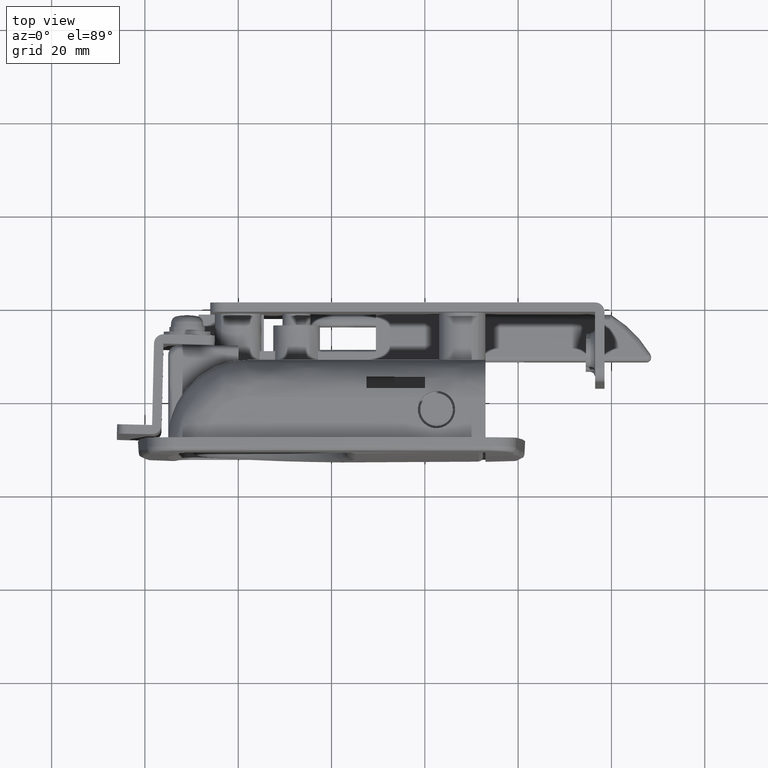
[diagram: clean part render]
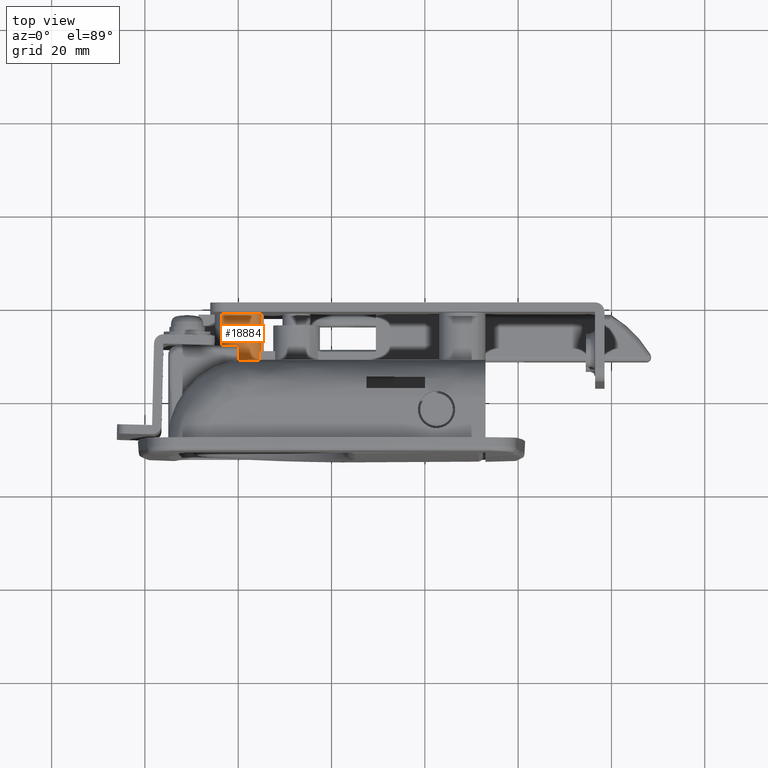
[diagram: same view with one face highlighted and labeled with its STEP entity id]
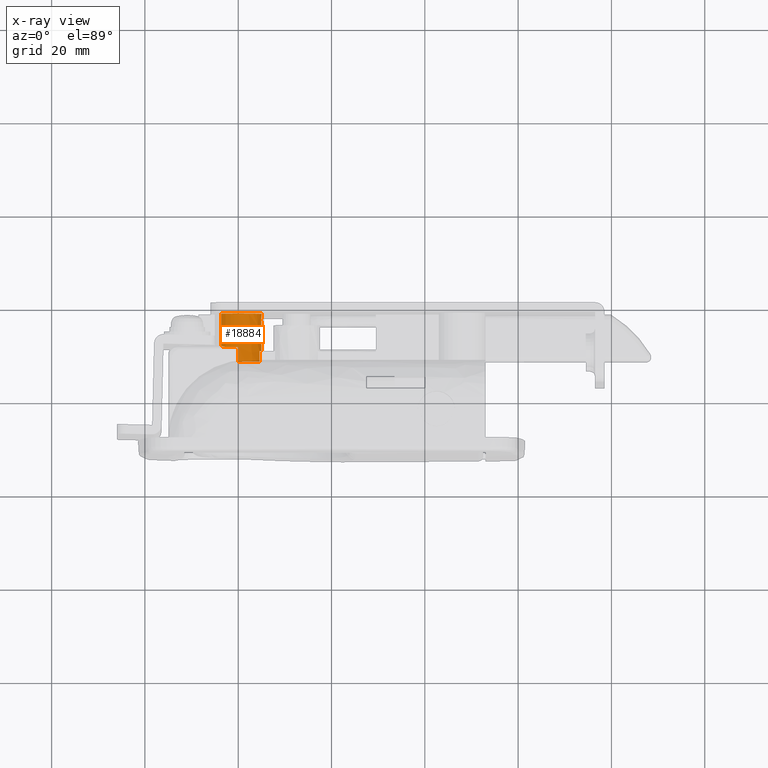
[diagram: x-ray of the same camera — body ghosted, the highlighted face saturated]
A machine part, top view. The second image highlights one B-rep face of the part: STEP entity #18884.
The next image is the same camera in x-ray: the body ghosted, the highlighted face saturated — about 1% of this face is hidden behind the body in this view.
In plain terms, the highlighted face is a freeform B-spline surface patch.
Its self-contained STEP definition (entity closure, byte-faithful):
#18643=CARTESIAN_POINT('',(23.415039969848849,-8.999999999997600,-13.847011557410120));
#18644=VERTEX_POINT('',#18643);
#18657=CARTESIAN_POINT('',(23.653989389418179,-9.000000000002327,-20.914040867268071));
#18658=VERTEX_POINT('',#18657);
#18668=CARTESIAN_POINT('',(23.653989379407150,-2.0,-20.914040877979780));
#18669=VERTEX_POINT('',#18668);
#18670=CARTESIAN_POINT('',(23.653989389418179,-9.000000000002327,-20.914040867268071));
#18671=CARTESIAN_POINT('',(23.653989379407150,-2.0,-20.914040877979780));
#18672=QUASI_UNIFORM_CURVE('',1,(#18670,#18671),.UNSPECIFIED.,.F.,.U.);
#18673=EDGE_CURVE('',#18658,#18669,#18672,.T.);
#18686=CARTESIAN_POINT('',(23.415039980559229,-2.0,-13.847011567419910));
#18687=VERTEX_POINT('',#18686);
#18697=CARTESIAN_POINT('',(23.415039969848849,-8.999999999997600,-13.847011557410120));
#18698=CARTESIAN_POINT('',(23.415039980559229,-2.0,-13.847011567419910));
#18699=QUASI_UNIFORM_CURVE('',1,(#18697,#18698),.UNSPECIFIED.,.F.,.U.);
#18700=EDGE_CURVE('',#18644,#18687,#18699,.T.);
#18705=CARTESIAN_POINT('',(23.653988845408861,-12.455000000000000,-20.914040494094710));
#18706=CARTESIAN_POINT('',(20.239948351314137,-12.455000000000002,-24.567029339503573));
#18707=CARTESIAN_POINT('',(16.586959505905291,-12.455000000000000,-21.152988845408860));
#18708=CARTESIAN_POINT('',(12.933970660496433,-12.455000000000002,-17.738948351314146));
#18709=CARTESIAN_POINT('',(16.348011154591148,-12.455000000000000,-14.085959505905290));
#18710=CARTESIAN_POINT('',(19.762051648685855,-12.455000000000002,-10.432970660496434));
#18711=CARTESIAN_POINT('',(23.415040494094718,-12.455000000000000,-13.847011154591140));
#18712=CARTESIAN_POINT('',(23.653988845408861,-1.738624999999999,-20.914040494094710));
#18713=CARTESIAN_POINT('',(20.239948351314137,-1.738625000000000,-24.567029339503573));
#18714=CARTESIAN_POINT('',(16.586959505905291,-1.738624999999999,-21.152988845408860));
#18715=CARTESIAN_POINT('',(12.933970660496433,-1.738625000000000,-17.738948351314146));
#18716=CARTESIAN_POINT('',(16.348011154591148,-1.738624999999999,-14.085959505905290));
#18717=CARTESIAN_POINT('',(19.762051648685855,-1.738625000000000,-10.432970660496434));
#18718=CARTESIAN_POINT('',(23.415040494094718,-1.738624999999999,-13.847011154591140));
#18726=(BOUNDED_SURFACE()B_SPLINE_SURFACE(2,1,((#18705,#18712),(#18706,#18713),(#18707,#18714),(#18708,#18715),(#18709,#18716),(#18710,#18717),(#18711,#18718)),.UNSPECIFIED.,.F.,.F.,.U.)B_SPLINE_SURFACE_WITH_KNOTS((3,2,2,3),(2,2),(0.0,8.284271247461907,16.568542494923818,24.852813742385720),(0.0,10.716374999999999),.UNSPECIFIED.)GEOMETRIC_REPRESENTATION_ITEM()RATIONAL_B_SPLINE_SURFACE(((1.0,1.0),(0.707106781186548,0.707106781186548),(1.0,1.0),(0.707106781186548,0.707106781186548),(1.0,1.0),(0.707106781186548,0.707106781186548),(1.0,1.0)))REPRESENTATION_ITEM('')SURFACE());
#18727=CARTESIAN_POINT('',(20.001000000000001,-9.0,-12.500000000000000));
#18728=VERTEX_POINT('',#18727);
#18729=CARTESIAN_POINT('',(20.001000000000001,-9.0,-12.500000000000000));
#18730=CARTESIAN_POINT('',(20.529515382173582,-8.999999999999615,-12.499722324673900));
#18731=CARTESIAN_POINT('',(21.292647114118608,-8.999999999999124,-12.622182152916540));
#18732=CARTESIAN_POINT('',(22.455321056079480,-8.999999999998233,-13.096820404234959));
#18733=CARTESIAN_POINT('',(23.057675364102689,-8.999999999997888,-13.512705793506891));
#18734=CARTESIAN_POINT('',(23.415039969848849,-8.999999999997600,-13.847011557410120));
#18735=B_SPLINE_CURVE_WITH_KNOTS('',3,(#18729,#18730,#18731,#18732,#18733,#18734),.UNSPECIFIED.,.F.,.U.,(4,1,1,4),(0.000000031937511,1.585415212733922,2.290035226309598,3.758017884884404),.UNSPECIFIED.);
#18736=EDGE_CURVE('',#18728,#18644,#18735,.T.);
#18737=ORIENTED_EDGE('',*,*,#18736,.T.);
#18738=ORIENTED_EDGE('',*,*,#18700,.T.);
#18739=CARTESIAN_POINT('',(20.001000000000001,-2.0,-12.500000000000000));
#18740=VERTEX_POINT('',#18739);
#18741=CARTESIAN_POINT('',(20.001000000000001,-2.0,-12.500000000000000));
#18742=CARTESIAN_POINT('',(20.333742742683260,-2.0,-12.499959143201620));
#18743=CARTESIAN_POINT('',(20.979623043887919,-2.0,-12.564712823611391));
#18744=CARTESIAN_POINT('',(21.920552113898552,-1.999999999999998,-12.849139150848760));
#18745=CARTESIAN_POINT('',(22.737412162310541,-2.000000000000006,-13.282120518588510));
#18746=CARTESIAN_POINT('',(23.214852059486969,-1.999999999999989,-13.659897347414651));
#18747=CARTESIAN_POINT('',(23.415039980559229,-2.0,-13.847011567419910));
#18748=B_SPLINE_CURVE_WITH_KNOTS('',3,(#18741,#18742,#18743,#18744,#18745,#18746,#18747),.UNSPECIFIED.,.F.,.U.,(4,1,1,1,4),(0.000000031938311,0.998224237891383,1.937707257224031,2.935953739731816,3.758017899544397),.UNSPECIFIED.);
#18749=EDGE_CURVE('',#18740,#18687,#18748,.T.);
#18750=ORIENTED_EDGE('',*,*,#18749,.F.);
#18751=CARTESIAN_POINT('',(15.001000000000680,-2.0,-17.499997384996110));
#18752=VERTEX_POINT('',#18751);
#18753=CARTESIAN_POINT('',(15.001000000000680,-2.0,-17.499997384996110));
#18754=CARTESIAN_POINT('',(15.000675061679811,-1.999999999999999,-16.947711896666309));
#18755=CARTESIAN_POINT('',(15.141402229074471,-2.0,-16.109402015465029));
#18756=CARTESIAN_POINT('',(15.657232979032459,-1.999999999999995,-14.945765588814821));
#18757=CARTESIAN_POINT('',(16.315075803232691,-2.000000000000007,-14.047181251862460));
#18758=CARTESIAN_POINT('',(17.170380789059141,-2.000000000000003,-13.336548306191901));
#18759=CARTESIAN_POINT('',(17.948908543449249,-2.0,-12.920498781660211));
#18760=CARTESIAN_POINT('',(18.855714618481532,-2.000000000000008,-12.595990351306581));
#18761=CARTESIAN_POINT('',(19.530552920868161,-1.999999999999994,-12.499795912611541));
#18762=CARTESIAN_POINT('',(20.001000000000001,-2.0,-12.500000000000000));
#18763=B_SPLINE_CURVE_WITH_KNOTS('',3,(#18753,#18754,#18755,#18756,#18757,#18758,#18759,#18760,#18761,#18762),.UNSPECIFIED.,.F.,.U.,(4,1,1,1,1,1,1,4),(0.000000145137712,1.656701756958504,2.515749604819217,3.804329205400953,4.970104442177361,5.829161644797662,6.442762798132771,7.854029440516972),.UNSPECIFIED.);
#18764=EDGE_CURVE('',#18752,#18740,#18763,.T.);
#18765=ORIENTED_EDGE('',*,*,#18764,.F.);
#18766=CARTESIAN_POINT('',(20.001000000000001,-2.0,-22.500000000000000));
#18767=VERTEX_POINT('',#18766);
#18768=CARTESIAN_POINT('',(20.001000000000001,-2.0,-22.500000000000000));
#18769=CARTESIAN_POINT('',(19.448732198993429,-1.999999999999999,-22.500306549751642));
#18770=CARTESIAN_POINT('',(18.508107650350698,-2.000000000000004,-22.342518806661349));
#18771=CARTESIAN_POINT('',(17.338781055461681,-1.999999999999993,-21.780527551763239));
#18772=CARTESIAN_POINT('',(16.467540122581759,-2.000000000000031,-21.091962729491890));
#18773=CARTESIAN_POINT('',(15.867045649947700,-1.999999999999912,-20.360226874530031));
#18774=CARTESIAN_POINT('',(15.437324627644740,-2.000000000000142,-19.590583215311050));
#18775=CARTESIAN_POINT('',(15.101087955292069,-1.999999999999854,-18.686203354264581));
#18776=CARTESIAN_POINT('',(15.000851525462661,-2.000000000000060,-17.949976194010940));
#18777=CARTESIAN_POINT('',(15.001000000000680,-2.0,-17.499997384996110));
#18778=B_SPLINE_CURVE_WITH_KNOTS('',3,(#18768,#18769,#18770,#18771,#18772,#18773,#18774,#18775,#18776,#18777),.UNSPECIFIED.,.F.,.U.,(4,1,1,1,1,1,1,4),(0.000000144234545,1.656702377963786,2.822549775486464,3.865700297040417,4.970106308700717,5.645083795293872,6.504136625274368,7.854032388254334),.UNSPECIFIED.);
#18779=EDGE_CURVE('',#18767,#18752,#18778,.T.);
#18780=ORIENTED_EDGE('',*,*,#18779,.F.);
#18781=CARTESIAN_POINT('',(23.653989379407150,-2.0,-20.914040877979780));
#18782=CARTESIAN_POINT('',(23.450073492281060,-2.000000000000002,-21.132259089324609));
#18783=CARTESIAN_POINT('',(22.955089273898611,-1.999999999999995,-21.574846810340379));
#18784=CARTESIAN_POINT('',(22.011507404824911,-1.999999999999996,-22.129380799999261));
#18785=CARTESIAN_POINT('',(20.982335723596861,-2.000000000000008,-22.441374204009762));
#18786=CARTESIAN_POINT('',(20.278328137116571,-1.999999999999998,-22.500002840576329));
#18787=CARTESIAN_POINT('',(20.001000000000001,-2.0,-22.500000000000000));
#18788=B_SPLINE_CURVE_WITH_KNOTS('',3,(#18781,#18782,#18783,#18784,#18785,#18786,#18787),.UNSPECIFIED.,.F.,.U.,(4,1,1,1,4),(0.000000038091811,0.896002939663016,1.984026343822100,3.264015264618861,4.096013301424406),.UNSPECIFIED.);
#18789=EDGE_CURVE('',#18669,#18767,#18788,.T.);
#18790=ORIENTED_EDGE('',*,*,#18789,.F.);
#18791=ORIENTED_EDGE('',*,*,#18673,.F.);
#18792=CARTESIAN_POINT('',(20.001000000000001,-9.0,-22.500000000000000));
#18793=VERTEX_POINT('',#18792);
#18794=CARTESIAN_POINT('',(23.653989389418179,-9.000000000002327,-20.914040867268071));
#18795=CARTESIAN_POINT('',(23.391844770608468,-9.000000000002162,-21.194647910912089));
#18796=CARTESIAN_POINT('',(22.884298775670409,-9.000000000001844,-21.625453408831721));
#18797=CARTESIAN_POINT('',(22.022770114707189,-9.000000000001272,-22.102393151044001));
#18798=CARTESIAN_POINT('',(21.088958615723278,-9.000000000000725,-22.418485952956029));
#18799=CARTESIAN_POINT('',(20.385006893764469,-9.000000000000217,-22.500083406568759));
#18800=CARTESIAN_POINT('',(20.001000000000001,-9.0,-22.500000000000000));
#18801=B_SPLINE_CURVE_WITH_KNOTS('',3,(#18794,#18795,#18796,#18797,#18798,#18799,#18800),.UNSPECIFIED.,.F.,.U.,(4,1,1,1,4),(0.000000038095262,1.152006422532227,1.984026350925221,2.944007978720033,4.096013316086268),.UNSPECIFIED.);
#18802=EDGE_CURVE('',#18658,#18793,#18801,.T.);
#18803=ORIENTED_EDGE('',*,*,#18802,.T.);
#18804=CARTESIAN_POINT('',(20.001000000000001,-12.199999999999999,-22.500000000000000));
#18805=VERTEX_POINT('',#18804);
#18806=CARTESIAN_POINT('',(20.001000000000001,-9.0,-22.500000000000000));
#18807=CARTESIAN_POINT('',(20.001000000000001,-12.199999999999999,-22.500000000000000));
#18808=QUASI_UNIFORM_CURVE('',1,(#18806,#18807),.UNSPECIFIED.,.F.,.U.);
#18809=EDGE_CURVE('',#18793,#18805,#18808,.T.);
#18810=ORIENTED_EDGE('',*,*,#18809,.T.);
#18811=CARTESIAN_POINT('',(18.002176511299400,-12.199999999999999,-22.083088986810001));
#18812=VERTEX_POINT('',#18811);
#18813=CARTESIAN_POINT('',(20.001000000000001,-12.199999999999999,-22.500000000000000));
#18814=CARTESIAN_POINT('',(19.315512375135690,-12.200000000000029,-22.500350452058679));
#18815=CARTESIAN_POINT('',(18.630313436084300,-12.199999999999980,-22.357687227526160));
#18816=CARTESIAN_POINT('',(18.002176511299400,-12.199999999999999,-22.083088986810001));
#18817=B_SPLINE_CURVE_WITH_KNOTS('',3,(#18813,#18814,#18815,#18816),.UNSPECIFIED.,.F.,.U.,(4,4),(8.701893E-009,2.056314773944477),.UNSPECIFIED.);
#18818=EDGE_CURVE('',#18805,#18812,#18817,.T.);
#18819=ORIENTED_EDGE('',*,*,#18818,.T.);
#18820=CARTESIAN_POINT('',(15.418424305044100,-12.199999999999999,-19.500000000000000));
#18821=VERTEX_POINT('',#18820);
#18822=CARTESIAN_POINT('',(18.002176511299400,-12.199999999999999,-22.083088986810001));
#18823=CARTESIAN_POINT('',(17.609289082580990,-12.200000000000010,-21.911887100735250));
#18824=CARTESIAN_POINT('',(16.986062518187421,-12.200000000000010,-21.538158598450430));
#18825=CARTESIAN_POINT('',(16.075432896195569,-12.199999999999990,-20.679620837949020));
#18826=CARTESIAN_POINT('',(15.628586966603759,-12.200000000000021,-19.982177190506938));
#18827=CARTESIAN_POINT('',(15.418424305044100,-12.199999999999999,-19.500000000000000));
#18828=B_SPLINE_CURVE_WITH_KNOTS('',3,(#18822,#18823,#18824,#18825,#18826,#18827),.UNSPECIFIED.,.F.,.U.,(4,1,1,4),(0.000000031191736,1.285667507644007,2.162254385978208,3.740118067494810),.UNSPECIFIED.);
#18829=EDGE_CURVE('',#18812,#18821,#18828,.T.);
#18830=ORIENTED_EDGE('',*,*,#18829,.T.);
#18831=CARTESIAN_POINT('',(15.418424305044100,-10.0,-19.500000000000000));
#18832=VERTEX_POINT('',#18831);
#18833=CARTESIAN_POINT('',(15.418424305044100,-12.199999999999999,-19.500000000000000));
#18834=CARTESIAN_POINT('',(15.418424305044100,-10.0,-19.500000000000000));
#18835=QUASI_UNIFORM_CURVE('',1,(#18833,#18834),.UNSPECIFIED.,.F.,.U.);
#18836=EDGE_CURVE('',#18821,#18832,#18835,.T.);
#18837=ORIENTED_EDGE('',*,*,#18836,.T.);
#18838=CARTESIAN_POINT('',(15.418424305044100,-10.0,-15.500000000000000));
#18839=VERTEX_POINT('',#18838);
#18840=CARTESIAN_POINT('',(15.418424305044100,-10.0,-19.500000000000000));
#18841=CARTESIAN_POINT('',(15.212383239700481,-9.999999999999996,-19.028623100736031));
#18842=CARTESIAN_POINT('',(14.992204198249180,-10.000000000000050,-18.189512701630640));
#18843=CARTESIAN_POINT('',(14.992187180990999,-9.999999999999895,-16.810488852919949));
#18844=CARTESIAN_POINT('',(15.212391190426301,-10.000000000000160,-15.971375469841201));
#18845=CARTESIAN_POINT('',(15.418424305044100,-10.0,-15.500000000000000));
#18846=B_SPLINE_CURVE_WITH_KNOTS('',3,(#18840,#18841,#18842,#18843,#18844,#18845),.UNSPECIFIED.,.F.,.U.,(4,1,1,4),(0.000000038998852,1.543208510370723,2.571988654202823,4.115196815340158),.UNSPECIFIED.);
#18847=EDGE_CURVE('',#18832,#18839,#18846,.T.);
#18848=ORIENTED_EDGE('',*,*,#18847,.T.);
#18849=CARTESIAN_POINT('',(15.418424305044100,-12.199999999999999,-15.500000000000000));
#18850=VERTEX_POINT('',#18849);
#18851=CARTESIAN_POINT('',(15.418424305044100,-12.199999999999999,-15.500000000000000));
#18852=CARTESIAN_POINT('',(15.418424305044100,-10.0,-15.500000000000000));
#18853=QUASI_UNIFORM_CURVE('',1,(#18851,#18852),.UNSPECIFIED.,.F.,.U.);
#18854=EDGE_CURVE('',#18850,#18839,#18853,.T.);
#18855=ORIENTED_EDGE('',*,*,#18854,.F.);
#18856=CARTESIAN_POINT('',(18.002176511299400,-12.199999999999999,-12.916911013190040));
#18857=VERTEX_POINT('',#18856);
#18858=CARTESIAN_POINT('',(15.418424305044100,-12.199999999999999,-15.500000000000000));
#18859=CARTESIAN_POINT('',(15.589717912061580,-12.200000000000010,-15.107145486780331));
#18860=CARTESIAN_POINT('',(15.903001740679031,-12.199999999999999,-14.585081565961220));
#18861=CARTESIAN_POINT('',(16.534134466731611,-12.199999999999999,-13.867235229627600));
#18862=CARTESIAN_POINT('',(17.167695324079329,-12.200000000000029,-13.342462802053360));
#18863=CARTESIAN_POINT('',(17.734340555303259,-12.199999999999999,-13.033706053513390));
#18864=CARTESIAN_POINT('',(18.002176511299400,-12.199999999999999,-12.916911013190040));
#18865=B_SPLINE_CURVE_WITH_KNOTS('',3,(#18858,#18859,#18860,#18861,#18862,#18863,#18864),.UNSPECIFIED.,.F.,.U.,(4,1,1,1,4),(0.000000031194542,1.285667507645712,1.811640149576223,2.863528602511089,3.740118067494785),.UNSPECIFIED.);
#18866=EDGE_CURVE('',#18850,#18857,#18865,.T.);
#18867=ORIENTED_EDGE('',*,*,#18866,.T.);
#18868=CARTESIAN_POINT('',(20.001000000000001,-12.199999999999999,-12.500000000000000));
#18869=VERTEX_POINT('',#18868);
#18870=CARTESIAN_POINT('',(18.002176511299400,-12.199999999999999,-12.916911013190040));
#18871=CARTESIAN_POINT('',(18.630366583751709,-12.199999999999999,-12.642538273376029));
#18872=CARTESIAN_POINT('',(19.315459281977709,-12.200000000000021,-12.499399625546809));
#18873=CARTESIAN_POINT('',(20.001000000000001,-12.199999999999999,-12.500000000000000));
#18874=B_SPLINE_CURVE_WITH_KNOTS('',3,(#18870,#18871,#18872,#18873),.UNSPECIFIED.,.F.,.U.,(4,4),(8.701794E-009,2.056314773944489),.UNSPECIFIED.);
#18875=EDGE_CURVE('',#18857,#18869,#18874,.T.);
#18876=ORIENTED_EDGE('',*,*,#18875,.T.);
#18877=CARTESIAN_POINT('',(20.001000000000001,-12.199999999999999,-12.500000000000000));
#18878=CARTESIAN_POINT('',(20.001000000000001,-9.0,-12.500000000000000));
#18879=QUASI_UNIFORM_CURVE('',1,(#18877,#18878),.UNSPECIFIED.,.F.,.U.);
#18880=EDGE_CURVE('',#18869,#18728,#18879,.T.);
#18881=ORIENTED_EDGE('',*,*,#18880,.T.);
#18882=EDGE_LOOP('',(#18737,#18738,#18750,#18765,#18780,#18790,#18791,#18803,#18810,#18819,#18830,#18837,#18848,#18855,#18867,#18876,#18881));
#18883=FACE_OUTER_BOUND('',#18882,.T.);
#18884=ADVANCED_FACE('',(#18883),#18726,.T.);